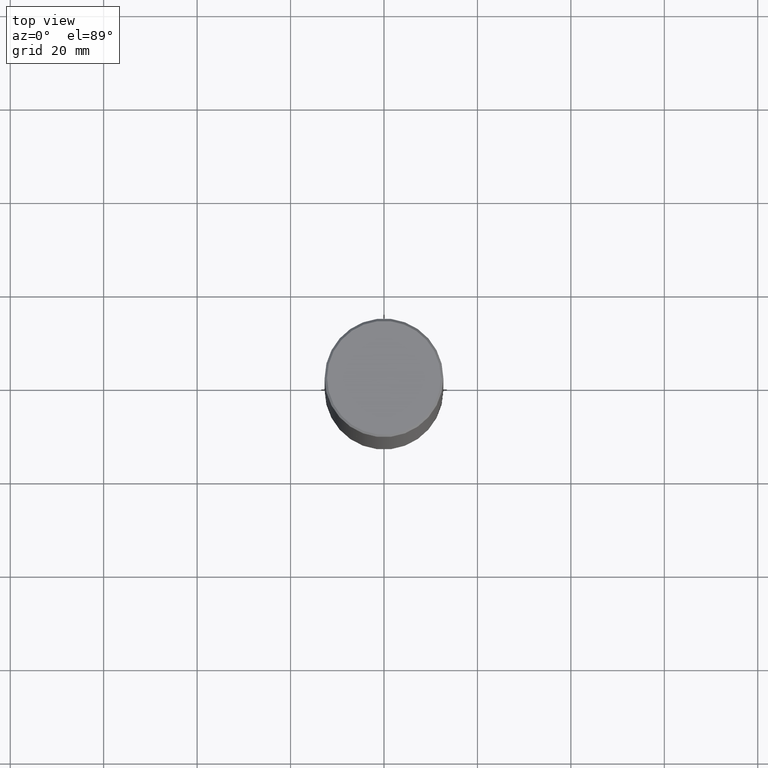
[diagram: clean part render]
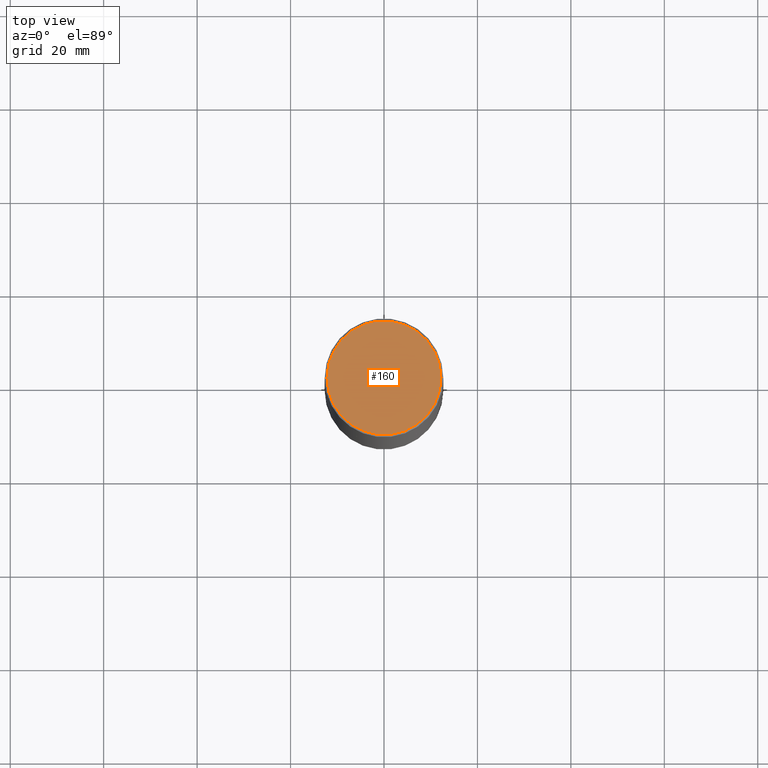
[diagram: same view with one face highlighted and labeled with its STEP entity id]
A machine part, top view. The second image highlights one B-rep face of the part: STEP entity #160.
In plain terms, the highlighted planar face has unit normal (0, -0, -1).
Its self-contained STEP definition (entity closure, byte-faithful):
#38 = CIRCLE ( 'NONE', #123, 0.4799999999999995937 ) ;
#59 = CARTESIAN_POINT ( 'NONE',  ( 0.4799999999999995937, -3.396558832296479338E-15, 1.280553747032483033E-17 ) ) ;
#64 = DIRECTION ( 'NONE',  ( -2.445468806185136597E-29, 3.491481338843145583E-15, 1.000000000000000000 ) ) ;
#80 = AXIS2_PLACEMENT_3D ( 'NONE', #134, #112, #103 ) ;
#81 = EDGE_LOOP ( 'NONE', ( #220, #149 ) ) ;
#89 = AXIS2_PLACEMENT_3D ( 'NONE', #214, #290, #346 ) ;
#103 = DIRECTION ( 'NONE',  ( 1.000000000000000000, -6.982962677686266711E-15, 4.876036955247133327E-29 ) ) ;
#112 = DIRECTION ( 'NONE',  ( -2.445468806185136597E-29, 3.491481338843145583E-15, 1.000000000000000000 ) ) ;
#113 = VERTEX_POINT ( 'NONE', #59 ) ;
#123 = AXIS2_PLACEMENT_3D ( 'NONE', #183, #64, #126 ) ;
#126 = DIRECTION ( 'NONE',  ( 1.000000000000000000, -6.982962677686266711E-15, 4.876036955247133327E-29 ) ) ;
#127 = FACE_OUTER_BOUND ( 'NONE', #81, .T. ) ;
#134 = CARTESIAN_POINT ( 'NONE',  ( -3.131554243005659264E-46, 4.471029511141341874E-32, 1.280553747030123384E-17 ) ) ;
#136 = CARTESIAN_POINT ( 'NONE',  ( -0.4799999999999995937, 3.386736898677836436E-15, 1.280553747027767124E-17 ) ) ;
#149 = ORIENTED_EDGE ( 'NONE', *, *, #212, .T. ) ;
#158 = CIRCLE ( 'NONE', #80, 0.4799999999999995937 ) ;
#160 = ADVANCED_FACE ( 'NONE', ( #127 ), #295, .F. ) ;
#183 = CARTESIAN_POINT ( 'NONE',  ( -3.131554243005659264E-46, 4.471029511141341874E-32, 1.280553747030123384E-17 ) ) ;
#212 = EDGE_CURVE ( 'NONE', #113, #331, #38, .T. ) ;
#214 = CARTESIAN_POINT ( 'NONE',  ( 3.351822085289404787E-15, 0.4799999999999995937, -1.669508273909557867E-15 ) ) ;
#220 = ORIENTED_EDGE ( 'NONE', *, *, #335, .T. ) ;
#290 = DIRECTION ( 'NONE',  ( 2.438088387897960049E-29, -3.491481338843145188E-15, -1.000000000000000000 ) ) ;
#295 = PLANE ( 'NONE',  #89 ) ;
#331 = VERTEX_POINT ( 'NONE', #136 ) ;
#335 = EDGE_CURVE ( 'NONE', #331, #113, #158, .T. ) ;
#346 = DIRECTION ( 'NONE',  ( -1.000000000000000000, 6.982962677686265922E-15, -4.876176775795935793E-29 ) ) ;